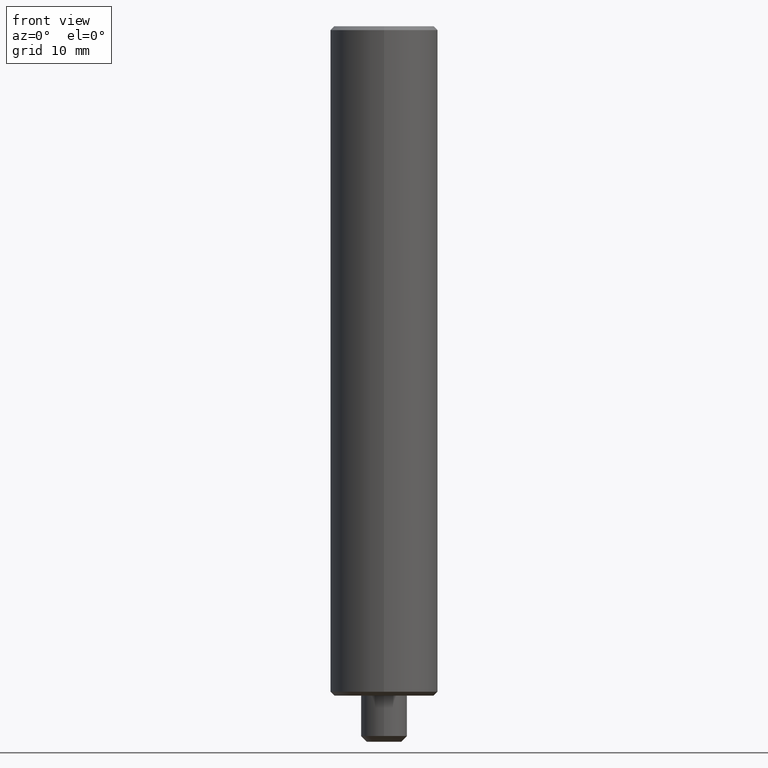
[diagram: clean part render]
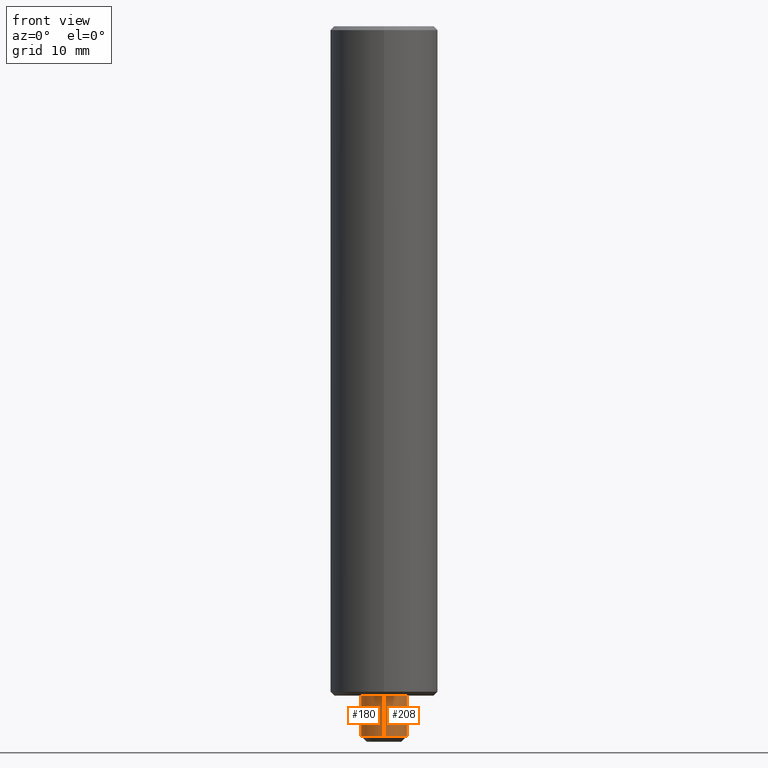
[diagram: same view with one multi-face feature highlighted, each face labeled with its STEP entity id]
A machine part, front view. The highlighted faces form ONE feature: a constant-radius fillet chain: 2 tangent blend faces with common blend radius 3 mm. The faces share edges in the B-rep.
Their STEP definitions:
[1] entity #208 (Cylinder):
#134=VERTEX_POINT('NONE',#315);
#164=EDGE_CURVE('NONE',#262,#134,#351,.T.);
#178=EDGE_CURVE('NONE',#198,#134,#368,.T.);
#196=EDGE_CURVE('NONE',#260,#262,#388,.T.);
#198=VERTEX_POINT('NONE',#390);
#200=EDGE_CURVE('NONE',#260,#198,#392,.T.);
#208=ADVANCED_FACE('NONE',(#400),#401,.T.);
#260=VERTEX_POINT('NONE',#458);
#262=VERTEX_POINT('NONE',#460);
#315=CARTESIAN_POINT('',(0.0,3.0,0.0));
#351=LINE('',#558,#559);
#368=CIRCLE('',#579,3.0);
#388=CIRCLE('',#606,3.0);
#390=CARTESIAN_POINT('',(-3.67381906146713E-016,-3.0,0.0));
#392=LINE('',#611,#612);
#400=FACE_OUTER_BOUND('',#624,.T.);
#401=CYLINDRICAL_SURFACE('',#625,3.0);
#458=CARTESIAN_POINT('',(-3.67381906146713E-016,-3.0,-5.25));
#460=CARTESIAN_POINT('',(0.0,3.0,-5.25));
#558=CARTESIAN_POINT('',(0.0,3.0,44.3839792060492));
#559=VECTOR('',#804,1000.0);
#579=AXIS2_PLACEMENT_3D('',#822,#823,#824);
#606=AXIS2_PLACEMENT_3D('',#849,#850,#851);
#611=CARTESIAN_POINT('',(-3.67381906146713E-016,-3.0,44.3839792060492));
#612=VECTOR('',#852,1000.0);
#624=EDGE_LOOP('',(#861,#862,#863,#864));
#625=AXIS2_PLACEMENT_3D('',#865,#866,#867);
#804=DIRECTION('',(0.0,-0.0,1.0));
#822=CARTESIAN_POINT('',(0.0,0.0,0.0));
#823=DIRECTION('',(0.0,-0.0,1.0));
#824=DIRECTION('',(0.0,1.0,0.0));
#849=CARTESIAN_POINT('',(0.0,0.0,-5.25));
#850=DIRECTION('',(0.0,-0.0,1.0));
#851=DIRECTION('',(0.0,1.0,0.0));
#852=DIRECTION('',(0.0,-0.0,1.0));
#861=ORIENTED_EDGE('',*,*,#200,.F.);
#862=ORIENTED_EDGE('',*,*,#196,.T.);
#863=ORIENTED_EDGE('',*,*,#164,.T.);
#864=ORIENTED_EDGE('',*,*,#178,.F.);
#865=CARTESIAN_POINT('',(0.0,0.0,44.3839792060492));
#866=DIRECTION('',(-0.0,-0.0,1.0));
#867=DIRECTION('',(0.0,1.0,0.0));
[2] entity #180 (Cylinder):
#104=EDGE_CURVE('NONE',#134,#198,#280,.T.);
#132=EDGE_CURVE('NONE',#262,#260,#313,.T.);
#134=VERTEX_POINT('NONE',#315);
#164=EDGE_CURVE('NONE',#262,#134,#351,.T.);
#180=ADVANCED_FACE('NONE',(#370),#371,.T.);
#198=VERTEX_POINT('NONE',#390);
#200=EDGE_CURVE('NONE',#260,#198,#392,.T.);
#260=VERTEX_POINT('NONE',#458);
#262=VERTEX_POINT('NONE',#460);
#280=CIRCLE('',#469,3.0);
#313=CIRCLE('',#513,3.0);
#315=CARTESIAN_POINT('',(0.0,3.0,0.0));
#351=LINE('',#558,#559);
#370=FACE_OUTER_BOUND('',#581,.T.);
#371=CYLINDRICAL_SURFACE('',#582,3.0);
#390=CARTESIAN_POINT('',(-3.67381906146713E-016,-3.0,0.0));
#392=LINE('',#611,#612);
#458=CARTESIAN_POINT('',(-3.67381906146713E-016,-3.0,-5.25));
#460=CARTESIAN_POINT('',(0.0,3.0,-5.25));
#469=AXIS2_PLACEMENT_3D('',#703,#704,#705);
#513=AXIS2_PLACEMENT_3D('',#753,#754,#755);
#558=CARTESIAN_POINT('',(0.0,3.0,44.3839792060492));
#559=VECTOR('',#804,1000.0);
#581=EDGE_LOOP('',(#826,#827,#828,#829));
#582=AXIS2_PLACEMENT_3D('',#830,#831,#832);
#611=CARTESIAN_POINT('',(-3.67381906146713E-016,-3.0,44.3839792060492));
#612=VECTOR('',#852,1000.0);
#703=CARTESIAN_POINT('',(0.0,0.0,0.0));
#704=DIRECTION('',(0.0,-0.0,1.0));
#705=DIRECTION('',(0.0,1.0,0.0));
#753=CARTESIAN_POINT('',(0.0,0.0,-5.25));
#754=DIRECTION('',(0.0,-0.0,1.0));
#755=DIRECTION('',(0.0,1.0,0.0));
#804=DIRECTION('',(0.0,-0.0,1.0));
#826=ORIENTED_EDGE('',*,*,#132,.T.);
#827=ORIENTED_EDGE('',*,*,#200,.T.);
#828=ORIENTED_EDGE('',*,*,#104,.F.);
#829=ORIENTED_EDGE('',*,*,#164,.F.);
#830=CARTESIAN_POINT('',(0.0,0.0,44.3839792060492));
#831=DIRECTION('',(-0.0,-0.0,1.0));
#832=DIRECTION('',(0.0,1.0,0.0));
#852=DIRECTION('',(0.0,-0.0,1.0));